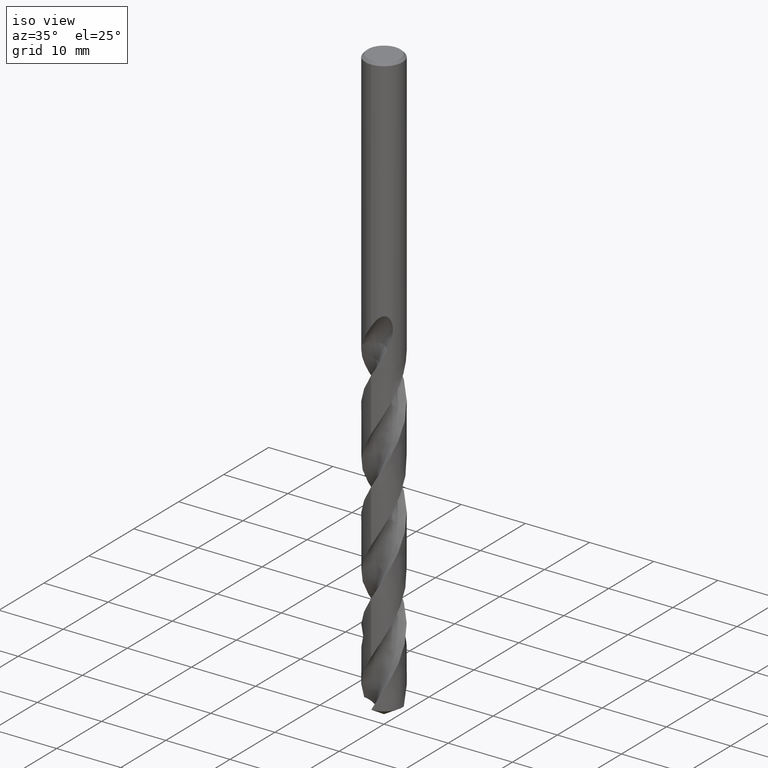
[diagram: clean part render]
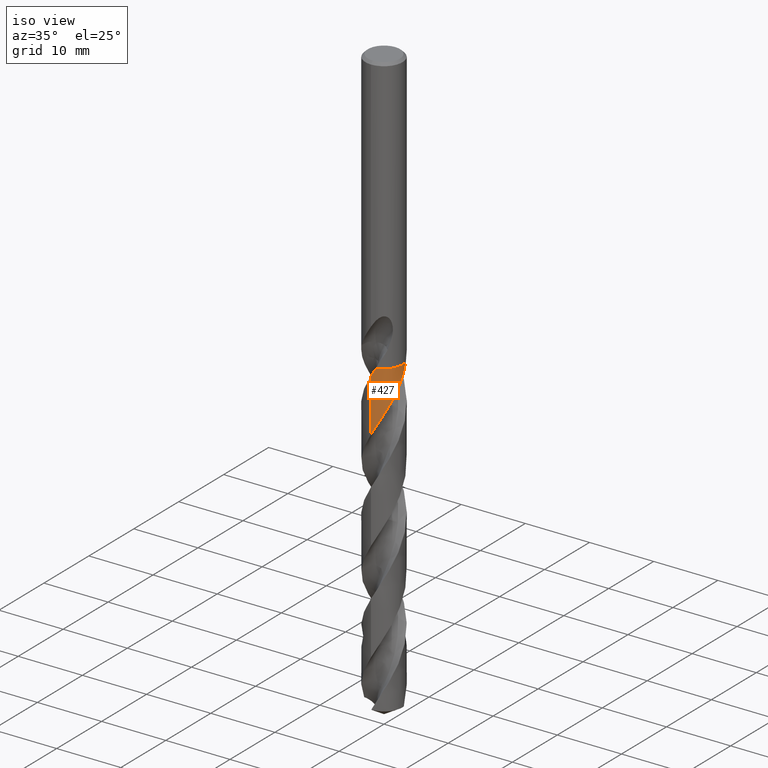
[diagram: same view with one face highlighted and labeled with its STEP entity id]
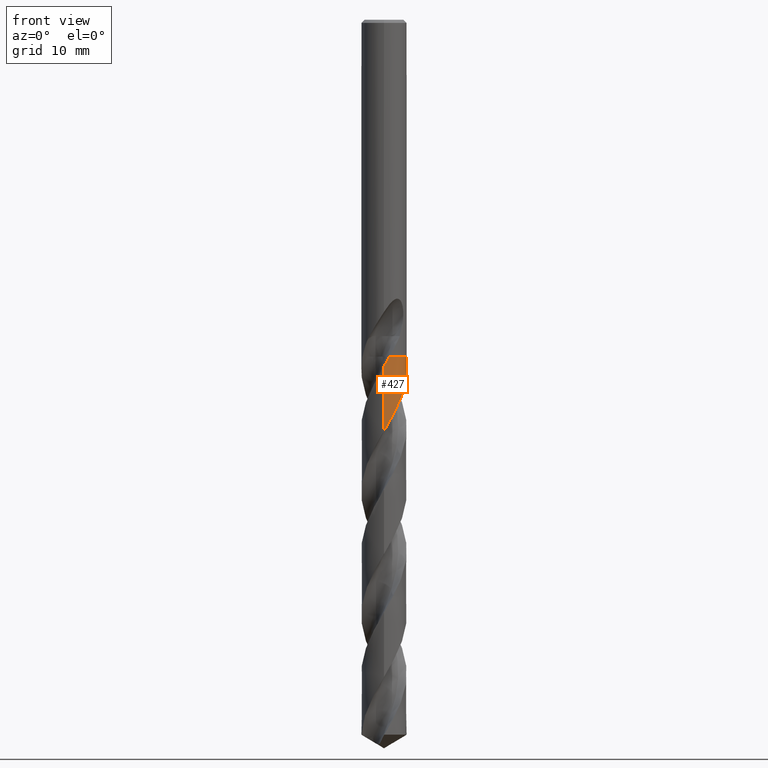
[diagram: same view with one face highlighted and labeled with its STEP entity id]
A machine part, iso view. The second image highlights one B-rep face of the part: STEP entity #427.
A second angle (front view) of the same face is appended — the face is thin or edge-on in the first view.
In plain terms, the highlighted conical surface has half-angle 0 deg.
Its self-contained STEP definition (entity closure, byte-faithful):
#319=VERTEX_POINT('',#845);
#347=EDGE_CURVE('',#361,#539,#874,.T.);
#361=VERTEX_POINT('',#890);
#369=EDGE_CURVE('',#319,#539,#900,.T.);
#427=ADVANCED_FACE('',(#965),#966,.T.);
#525=VERTEX_POINT('',#1069);
#539=VERTEX_POINT('',#1085);
#573=VERTEX_POINT('',#1122);
#593=EDGE_CURVE('',#573,#319,#1143,.T.);
#661=EDGE_CURVE('',#787,#573,#1219,.T.);
#719=EDGE_CURVE('',#361,#525,#1282,.T.);
#749=EDGE_CURVE('',#525,#787,#1313,.T.);
#787=VERTEX_POINT('',#1356);
#845=CARTESIAN_POINT('',(0.708817146820512,-2.81193853461724,-43.005));
#874=LINE('',#2320,#2321);
#890=CARTESIAN_POINT('',(6.17278690154245E-015,-2.89991970615239,-52.509697315015));
#900=B_SPLINE_CURVE_WITH_KNOTS('',3,(#3314,#3315,#3316,#3317,#3318,#3319,#3320,#3321,#3322,#3323,#3324,#3325,#3326,#3327,#3328,#3329,#3330,#3331,#3332,#3333,#3334,#3335,#3336,#3337,#3338,#3339,#3340,#3341,#3342,#3343,#3344,#3345,#3346,#3347,#3348,#3349,#3350,#3351,#3352,#3353,#3354,#3355,#3356,#3357,#3358,#3359,#3360,#3361,#3362,#3363,#3364,#3365,#3366,#3367,#3368,#3369,#3370,#3371,#3372,#3373,#3374,#3375,#3376,#3377,#3378,#3379,#3380,#3381,#3382,#3383,#3384,#3385,#3386,#3387,#3388,#3389,#3390,#3391,#3392,#3393,#3394,#3395,#3396,#3397,#3398,#3399,#3400,#3401,#3402,#3403,#3404,#3405,#3406,#3407,#3408,#3409,#3410,#3411,#3412,#3413,#3414,#3415,#3416,#3417,#3418,#3419,#3420,#3421,#3422,#3423,#3424,#3425,#3426,#3427,#3428,#3429,#3430,#3431,#3432,#3433,#3434,#3435,#3436,#3437,#3438,#3439,#3440,#3441,#3442,#3443,#3444,#3445),.UNSPECIFIED.,.F.,.F.,(4,2,2,2,2,2,2,2,2,2,2,2,2,2,2,2,2,2,2,2,2,2,2,2,2,2,2,2,2,2,2,2,2,2,2,2,2,2,2,2,2,2,2,2,2,2,2,2,2,2,2,2,2,2,2,2,2,2,2,2,2,2,2,2,2,4),(0.0,0.734687601992351,0.831900823616429,1.31989510520813,2.08909400224693,3.03914760897372,4.46201805980387,4.72253412784122,5.64926966020143,6.21012565874434,6.8001131264814,8.12153289467717,8.69105803085714,9.9700948490683,10.5528626127341,11.7634123763994,12.5715874202384,14.032657692584,14.1608117507879,15.102555920496,15.6631895520941,16.2462143594435,17.4330052633375,18.2952926140229,19.4688288888984,20.0514404123535,21.2400638655297,22.0940010850815,23.2656772812075,23.9655904610057,25.3884582794613,25.6570285675933,26.6004915529166,27.1605235385773,27.7187555234633,29.0237748224459,29.6099386749464,30.9057323737993,31.4869657691016,32.730748809919,33.4680922925951,34.8761184069554,35.1500579167859,36.0882912480827,36.6481110979691,37.213759276032,38.5104369832416,39.0913081906929,40.3394665584893,41.0694864308578,42.495176045494,42.7620772538122,43.7125495049517,44.2719425935741,44.8218555236205,46.1340946125214,46.7098608088504,48.0081814299684,48.5887450305573,49.852509500661,50.5585447799354,51.8394514170027,52.3256821394527,53.1847950576051,54.481717700277,55.7775264751287),.UNSPECIFIED.);
#965=FACE_OUTER_BOUND('',#4234,.T.);
#966=CONICAL_SURFACE('',#4235,2.89995,2.07221657331544E-006);
#1069=CARTESIAN_POINT('',(2.74207985757633,0.943619701096182,-43.005));
#1085=CARTESIAN_POINT('',(1.37223024195501E-014,-2.89990256687544,-44.2387100143636));
#1122=CARTESIAN_POINT('',(0.711636373017269,-2.81122636630329,-43.0));
#1143=B_SPLINE_CURVE_WITH_KNOTS('',3,(#6725,#6726,#6727,#6728),.UNSPECIFIED.,.F.,.F.,(4,4),(0.0,0.00780790975939207),.UNSPECIFIED.);
#1219=CIRCLE('',#9237,2.8999);
#1282=B_SPLINE_CURVE_WITH_KNOTS('',3,(#10588,#10589,#10590,#10591,#10592,#10593,#10594,#10595,#10596,#10597,#10598,#10599,#10600,#10601,#10602,#10603,#10604,#10605,#10606,#10607,#10608,#10609,#10610,#10611,#10612,#10613,#10614,#10615,#10616,#10617,#10618,#10619,#10620,#10621,#10622,#10623,#10624,#10625,#10626,#10627,#10628,#10629,#10630,#10631,#10632,#10633,#10634,#10635,#10636,#10637,#10638,#10639,#10640,#10641,#10642,#10643,#10644,#10645,#10646,#10647,#10648,#10649,#10650,#10651,#10652,#10653,#10654,#10655,#10656,#10657,#10658,#10659,#10660,#10661,#10662,#10663,#10664,#10665,#10666,#10667,#10668,#10669,#10670,#10671,#10672,#10673,#10674,#10675,#10676,#10677,#10678,#10679,#10680,#10681,#10682,#10683,#10684,#10685,#10686,#10687,#10688,#10689,#10690,#10691,#10692,#10693,#10694,#10695,#10696,#10697,#10698,#10699,#10700,#10701,#10702,#10703,#10704,#10705,#10706,#10707,#10708,#10709,#10710,#10711,#10712,#10713,#10714,#10715),.UNSPECIFIED.,.F.,.F.,(4,2,2,2,2,2,2,2,2,2,2,2,2,2,2,2,2,2,2,2,2,2,2,2,2,2,2,2,2,2,2,2,2,2,2,2,2,2,2,2,2,2,2,2,2,2,2,2,2,2,2,2,2,2,2,2,2,2,2,2,2,2,2,4),(0.0,3.20798292329517,4.08689199098889,5.02861937134433,5.97390468474338,6.91610593440943,7.8627072889589,8.80529337933982,9.75309115190887,10.6961901887487,11.6451567993103,12.588646889427,13.5390077681298,14.4831208437243,15.4348784244,16.379756273268,16.8571535029794,17.3084569122919,18.2418636930199,18.7194313187106,19.1880070358211,20.0788831232633,20.5569666868747,21.4938854929208,22.4452532040103,23.383028196343,24.3335994011987,25.2725994555851,26.2225610786494,27.1628903736692,28.112516014271,29.0537607565007,30.0029556899291,30.9453598790916,31.8942270023913,32.8691578225874,33.9815864049715,34.4597881439539,35.3316001609174,36.1568058120427,36.2322825903713,37.3907671492209,38.3796142544271,39.3248848461089,40.3016385692045,41.2750833376512,42.2288626331392,43.1731593162767,44.1232122765622,45.0681036246441,46.0193752605064,46.9648142503493,47.9173580993406,48.8632474463446,49.3122940622853,49.7269289274534,51.2902692851401,51.5857097265407,52.7029618457396,53.1239293373994,53.8560732964571,54.9621123230717,55.5142682027793,56.0754838556959),.UNSPECIFIED.);
#1313=B_SPLINE_CURVE_WITH_KNOTS('',3,(#10801,#10802,#10803,#10804),.UNSPECIFIED.,.F.,.F.,(4,4),(0.0,0.00883182869743307),.UNSPECIFIED.);
#1356=CARTESIAN_POINT('',(2.74112394825592,0.946392894255812,-43.0));
#2320=CARTESIAN_POINT('',(3.55168846937037E-016,-2.89995,-67.12875210241));
#2321=VECTOR('',#12318,1.0);
#3314=CARTESIAN_POINT('',(0.709196864390202,-2.81184278890881,-43.0043266329164));
#3315=CARTESIAN_POINT('',(0.589819924759416,-2.84195223305977,-43.2160258381416));
#3316=CARTESIAN_POINT('',(0.468776034634397,-2.8643967198523,-43.4272015964065));
#3317=CARTESIAN_POINT('',(0.330658596945046,-2.88103405007569,-43.6670962741344));
#3318=CARTESIAN_POINT('',(0.314507135909671,-2.88284192165602,-43.6951349575803));
#3319=CARTESIAN_POINT('',(0.217230326482938,-2.89290369909604,-43.8638616264259));
#3320=CARTESIAN_POINT('',(0.135774800674416,-2.89787060357993,-44.004585474267));
#3321=CARTESIAN_POINT('',(-0.074381514166789,-2.90179993398426,-44.3670175475019));
#3322=CARTESIAN_POINT('',(-0.203029145353825,-2.89565063021488,-44.5880982597957));
#3323=CARTESIAN_POINT('',(-0.488901711454981,-2.86281411659515,-45.0834585131535));
#3324=CARTESIAN_POINT('',(-0.645019690346248,-2.83171762376365,-45.3567065406475));
#3325=CARTESIAN_POINT('',(-1.02641912146738,-2.7225915342234,-46.0406911637749));
#3326=CARTESIAN_POINT('',(-1.24633355511751,-2.62922566431542,-46.4492730089021));
#3327=CARTESIAN_POINT('',(-1.49019489722658,-2.4881092516152,-46.9343137069972));
#3328=CARTESIAN_POINT('',(-1.52742685316338,-2.46542801260504,-47.0093448240901));
#3329=CARTESIAN_POINT('',(-1.69469731268276,-2.35828650455709,-47.351515218612));
#3330=CARTESIAN_POINT('',(-1.81833690228464,-2.26432394942695,-47.6184666809685));
#3331=CARTESIAN_POINT('',(-2.00378490003421,-2.09836374197422,-48.0472472979415));
#3332=CARTESIAN_POINT('',(-2.07064078423254,-2.03242246317552,-48.2087785507716));
#3333=CARTESIAN_POINT('',(-2.20104968878787,-1.89066594952387,-48.5404423289429));
#3334=CARTESIAN_POINT('',(-2.26412480707362,-1.81465315627334,-48.7102880190157));
#3335=CARTESIAN_POINT('',(-2.45547280324397,-1.55852546491168,-49.2612979775579));
#3336=CARTESIAN_POINT('',(-2.56713592661828,-1.36683607651739,-49.6411883184141));
#3337=CARTESIAN_POINT('',(-2.69421694791627,-1.07693551033774,-50.186184672626));
#3338=CARTESIAN_POINT('',(-2.72814880148011,-0.987820594419387,-50.3501570491569));
#3339=CARTESIAN_POINT('',(-2.82382700616999,-0.693755596008218,-50.8830968931142));
#3340=CARTESIAN_POINT('',(-2.86733093255858,-0.483506136455628,-51.2509569154893));
#3341=CARTESIAN_POINT('',(-2.89638542323459,-0.173189537382043,-51.7876180872426));
#3342=CARTESIAN_POINT('',(-2.90056982142947,-0.0756927287708941,-51.9553914710871));
#3343=CARTESIAN_POINT('',(-2.89831444463653,0.224342338911806,-52.4724511229055));
#3344=CARTESIAN_POINT('',(-2.87557607976341,0.426229716092262,-52.8208215776271));
#3345=CARTESIAN_POINT('',(-2.80283920299499,0.756269223561304,-53.4027965164672));
#3346=CARTESIAN_POINT('',(-2.76451945364778,0.886150664081288,-53.6353337631728));
#3347=CARTESIAN_POINT('',(-2.63191623943872,1.24190505227851,-54.2897078462182));
#3348=CARTESIAN_POINT('',(-2.51788090277063,1.45934411023886,-54.7093797065605));
#3349=CARTESIAN_POINT('',(-2.36556493916384,1.67753664902391,-55.1675407943511));
#3350=CARTESIAN_POINT('',(-2.35308924782351,1.69499203512883,-55.2044792950339));
#3351=CARTESIAN_POINT('',(-2.2473267059892,1.83955175591963,-55.5129735472538));
#3352=CARTESIAN_POINT('',(-2.14402480695563,1.95897316291354,-55.7844139536754));
#3353=CARTESIAN_POINT('',(-1.96458581109958,2.13513145862369,-56.2176903296006));
#3354=CARTESIAN_POINT('',(-1.8944575395359,2.19759537385795,-56.379247417778));
#3355=CARTESIAN_POINT('',(-1.74543147559522,2.31788391160528,-56.7090121685746));
#3356=CARTESIAN_POINT('',(-1.66643662148603,2.37531004701323,-56.8769084545678));
#3357=CARTESIAN_POINT('',(-1.41836335931646,2.53718220237806,-57.3873540556447));
#3358=CARTESIAN_POINT('',(-1.24124500589971,2.62838483814613,-57.7290506124596));
#3359=CARTESIAN_POINT('',(-0.921667464707236,2.75335884415866,-58.3199752886997));
#3360=CARTESIAN_POINT('',(-0.783489792841563,2.79581422053313,-58.5681092525272));
#3361=CARTESIAN_POINT('',(-0.451247591307603,2.87133494212418,-59.15536522581));
#3362=CARTESIAN_POINT('',(-0.25572263849469,2.89531670443546,-59.49313027734));
#3363=CARTESIAN_POINT('',(0.0383553324620512,2.90132305926764,-59.999592220549));
#3364=CARTESIAN_POINT('',(0.135923123659335,2.89838978849652,-60.1674015531133));
#3365=CARTESIAN_POINT('',(0.431471096796989,2.87455339500278,-60.6783495184131));
#3366=CARTESIAN_POINT('',(0.627696703381162,2.8381807534145,-61.0206286274081));
#3367=CARTESIAN_POINT('',(0.955900590242541,2.74159726131393,-61.6097790106421));
#3368=CARTESIAN_POINT('',(1.08988973709356,2.69113716741953,-61.8555593761785));
#3369=CARTESIAN_POINT('',(1.3975173783784,2.54854175554857,-62.439979285129));
#3370=CARTESIAN_POINT('',(1.56670454619967,2.44818709349459,-62.7772854763642));
#3371=CARTESIAN_POINT('',(1.81877272314258,2.26174211436463,-63.3171440009698));
#3372=CARTESIAN_POINT('',(1.90868737611621,2.1863916184141,-63.5187430922175));
#3373=CARTESIAN_POINT('',(2.16674676330566,1.94206641984917,-64.1312355235213));
#3374=CARTESIAN_POINT('',(2.31895818381013,1.75753831806082,-64.5403091818079));
#3375=CARTESIAN_POINT('',(2.47105099488338,1.51842563975636,-65.0282241614656));
#3376=CARTESIAN_POINT('',(2.49430725855991,1.47991221332055,-65.1056660736381));
#3377=CARTESIAN_POINT('',(2.59516583319139,1.30375273598382,-65.4553745757094));
#3378=CARTESIAN_POINT('',(2.66234128747465,1.16043147898697,-65.7274352820531));
#3379=CARTESIAN_POINT('',(2.75024896171845,0.924460356146151,-66.1612671925264));
#3380=CARTESIAN_POINT('',(2.77871702440493,0.835007760530864,-66.3227306289101));
#3381=CARTESIAN_POINT('',(2.82681089447048,0.65390656119108,-66.6453527343366));
#3382=CARTESIAN_POINT('',(2.84642210462004,0.562427974583277,-66.8062492486754));
#3383=CARTESIAN_POINT('',(2.89701049504161,0.254552472355838,-67.34396392882));
#3384=CARTESIAN_POINT('',(2.90796844421366,0.0355133927666785,-67.7195975123642));
#3385=CARTESIAN_POINT('',(2.88799921808818,-0.280771397296302,-68.2652659560469));
#3386=CARTESIAN_POINT('',(2.87683578137268,-0.378388692770556,-68.434204591919));
#3387=CARTESIAN_POINT('',(2.82518825772053,-0.689300942719356,-68.977367921698));
#3388=CARTESIAN_POINT('',(2.76569458023569,-0.898794154200102,-69.3504068895454));
#3389=CARTESIAN_POINT('',(2.64640040354734,-1.18987263572748,-69.8920439325809));
#3390=CARTESIAN_POINT('',(2.60495579698237,-1.27805637760547,-70.0595688133809));
#3391=CARTESIAN_POINT('',(2.46118353987375,-1.54781353398641,-70.5863465494807));
#3392=CARTESIAN_POINT('',(2.34363691674901,-1.72063327984319,-70.9445826310018));
#3393=CARTESIAN_POINT('',(2.12844703537059,-1.97351170771502,-71.5163303205503));
#3394=CARTESIAN_POINT('',(2.04245302642401,-2.06237808128504,-71.7287776110998));
#3395=CARTESIAN_POINT('',(1.77660671426545,-2.30413975147303,-72.3481052932362));
#3396=CARTESIAN_POINT('',(1.58334794538412,-2.4410025558116,-72.7531700302044));
#3397=CARTESIAN_POINT('',(1.33514313974828,-2.57473976020594,-73.2386035973654));
#3398=CARTESIAN_POINT('',(1.29421718751436,-2.59555261483421,-73.3176316225911));
#3399=CARTESIAN_POINT('',(1.11102931449108,-2.68330389430504,-73.6675581270541));
#3400=CARTESIAN_POINT('',(0.963944105202415,-2.73958423965281,-73.9382565192406));
#3401=CARTESIAN_POINT('',(0.722982270927824,-2.80996332020994,-74.3707419340157));
#3402=CARTESIAN_POINT('',(0.631691606703626,-2.83188507521568,-74.5322286319872));
#3403=CARTESIAN_POINT('',(0.446302246679511,-2.86698621178643,-74.857096144676));
#3404=CARTESIAN_POINT('',(0.352353484226026,-2.88004046485142,-75.0202058990032));
#3405=CARTESIAN_POINT('',(0.0415745769452985,-2.90779623897309,-75.5579269589028));
#3406=CARTESIAN_POINT('',(-0.17638593387573,-2.90275193042695,-75.9313690396473));
#3407=CARTESIAN_POINT('',(-0.488295631868381,-2.86022283001012,-76.4733812363293));
#3408=CARTESIAN_POINT('',(-0.584034200610236,-2.84221777349979,-76.6408727951698));
#3409=CARTESIAN_POINT('',(-0.881999503603227,-2.77049610450104,-77.169030861864));
#3410=CARTESIAN_POINT('',(-1.07952135003523,-2.69967927711464,-77.5286673094258));
#3411=CARTESIAN_POINT('',(-1.37783742558705,-2.55467980726858,-78.0998025877722));
#3412=CARTESIAN_POINT('',(-1.48438795183302,-2.49427350514912,-78.3102380740958));
#3413=CARTESIAN_POINT('',(-1.78673812498564,-2.29662569906975,-78.9328078256753));
#3414=CARTESIAN_POINT('',(-1.9698674405227,-2.14164424703875,-79.343058648088));
#3415=CARTESIAN_POINT('',(-2.16228349413605,-1.93297596733971,-79.8317579330699));
#3416=CARTESIAN_POINT('',(-2.19185112192724,-1.89938254433786,-79.9087912170495));
#3417=CARTESIAN_POINT('',(-2.32310044288196,-1.7431173968345,-80.260365742046));
#3418=CARTESIAN_POINT('',(-2.41535266404678,-1.61286468289323,-80.5346904609563));
#3419=CARTESIAN_POINT('',(-2.54415793355382,-1.3949664377409,-80.9707593143221));
#3420=CARTESIAN_POINT('',(-2.58794559649669,-1.31195208915044,-81.1321851747051));
#3421=CARTESIAN_POINT('',(-2.66666231668683,-1.14337255934305,-81.45251707738));
#3422=CARTESIAN_POINT('',(-2.70166039941915,-1.05802186712333,-81.6111702879698));
#3423=CARTESIAN_POINT('',(-2.80618364107794,-0.763935484255457,-82.1490630429778));
#3424=CARTESIAN_POINT('',(-2.85605439550709,-0.548902425567817,-82.52709708689));
#3425=CARTESIAN_POINT('',(-2.89211663726846,-0.23428509810437,-83.072348159548));
#3426=CARTESIAN_POINT('',(-2.89831086315649,-0.137885752075977,-83.2384513480526));
#3427=CARTESIAN_POINT('',(-2.90279481863129,0.176226004983761,-83.77984122963));
#3428=CARTESIAN_POINT('',(-2.88139551911636,0.39358277263867,-84.1539408687989));
#3429=CARTESIAN_POINT('',(-2.81547414390866,0.701791289294951,-84.6966110868712));
#3430=CARTESIAN_POINT('',(-2.79032820090689,0.795905060807742,-84.8641000364877));
#3431=CARTESIAN_POINT('',(-2.69559130004443,1.09023158141851,-85.3969411240678));
#3432=CARTESIAN_POINT('',(-2.60874412983381,1.28426496764883,-85.7612143243447));
#3433=CARTESIAN_POINT('',(-2.44156318722105,1.56931171979168,-86.3302106866316));
#3434=CARTESIAN_POINT('',(-2.37546036929183,1.66767561401405,-86.5338556696316));
#3435=CARTESIAN_POINT('',(-2.17310184892078,1.93227674829981,-87.1079704115577));
#3436=CARTESIAN_POINT('',(-2.02404739530892,2.08791203244397,-87.4770840384082));
#3437=CARTESIAN_POINT('',(-1.79648885003799,2.27799127871136,-87.9875650996091));
#3438=CARTESIAN_POINT('',(-1.73171942197208,2.32760791365919,-88.1278859755498));
#3439=CARTESIAN_POINT('',(-1.54700194219282,2.45713398905651,-88.5166359860108));
#3440=CARTESIAN_POINT('',(-1.42303825434204,2.53094641164164,-88.764757637246));
#3441=CARTESIAN_POINT('',(-1.09946449878408,2.69229642379989,-89.387788805201));
#3442=CARTESIAN_POINT('',(-0.894514007505912,2.76715319852434,-89.7610084112836));
#3443=CARTESIAN_POINT('',(-0.47191971256064,2.86958388846035,-90.5101989459375));
#3444=CARTESIAN_POINT('',(-0.255565140427376,2.89688924810318,-90.8831695377742));
#3445=CARTESIAN_POINT('',(-0.0381319874682582,2.89974929115117,-91.2575042048201));
#4234=EDGE_LOOP('',(#12458,#12459,#12460,#12461,#12462,#12463));
#4235=AXIS2_PLACEMENT_3D('',#12464,#12465,#12466);
#6725=CARTESIAN_POINT('',(0.71163637301725,-2.8112263663033,-43.0));
#6726=CARTESIAN_POINT('',(0.710367975755525,-2.81154745433715,-43.002249841786));
#6727=CARTESIAN_POINT('',(0.709099356840707,-2.81186768503794,-43.0044996801406));
#6728=CARTESIAN_POINT('',(0.707830517146383,-2.81218705816575,-43.0067495165575));
#9237=AXIS2_PLACEMENT_3D('',#12685,#12686,#12687);
#10588=CARTESIAN_POINT('',(-2.88602569784433,-0.284351316828662,-91.2575042048201));
#10589=CARTESIAN_POINT('',(-2.83363953802558,-0.816025439440411,-90.3311997615502));
#10590=CARTESIAN_POINT('',(-2.63481816987268,-1.32534620793921,-89.4290724024854));
#10591=CARTESIAN_POINT('',(-2.2208447661475,-1.87069314039981,-88.2505891012098));
#10592=CARTESIAN_POINT('',(-2.12313727032623,-1.98087451050404,-87.9961975107438));
#10593=CARTESIAN_POINT('',(-1.90437005697111,-2.19274810545372,-87.4712594909806));
#10594=CARTESIAN_POINT('',(-1.78240535838824,-2.29300298257379,-87.2011049017321));
#10595=CARTESIAN_POINT('',(-1.52269593596356,-2.47313777342799,-86.6573594375165));
#10596=CARTESIAN_POINT('',(-1.385591028283,-2.55245865450293,-86.3840152750498));
#10597=CARTESIAN_POINT('',(-1.10053373400127,-2.68766887872904,-85.8401624547733));
#10598=CARTESIAN_POINT('',(-0.95288763693384,-2.74350315896779,-85.5700327903458));
#10599=CARTESIAN_POINT('',(-0.649037797919607,-2.83086218094608,-85.0261458355491));
#10600=CARTESIAN_POINT('',(-0.493615006805579,-2.86203815961651,-84.7526361679551));
#10601=CARTESIAN_POINT('',(-0.180213046583823,-2.89865888199646,-84.2086799251554));
#10602=CARTESIAN_POINT('',(-0.0225088728840171,-2.90418078755561,-83.9386355908567));
#10603=CARTESIAN_POINT('',(0.293365356542886,-2.88945991529697,-83.3947066840088));
#10604=CARTESIAN_POINT('',(0.450669587684879,-2.86911386841294,-83.1210841051749));
#10605=CARTESIAN_POINT('',(0.759258409144756,-2.8032463651742,-82.5770608827561));
#10606=CARTESIAN_POINT('',(0.910353625458037,-2.75789722911977,-82.3070810753801));
#10607=CARTESIAN_POINT('',(1.20484062229416,-2.6426130140344,-81.7631121188331));
#10608=CARTESIAN_POINT('',(1.34736337274273,-2.5728427281543,-81.4893930984913));
#10609=CARTESIAN_POINT('',(1.61844698557568,-2.41148140565992,-80.9453866148574));
#10610=CARTESIAN_POINT('',(1.74693983242342,-2.32010783679155,-80.6755278410847));
#10611=CARTESIAN_POINT('',(1.98890677258356,-2.1164369509206,-80.1315454726492));
#10612=CARTESIAN_POINT('',(2.10158443173985,-2.00455791220092,-79.8577131106543));
#10613=CARTESIAN_POINT('',(2.30656738056579,-1.76474408638561,-79.3136448539286));
#10614=CARTESIAN_POINT('',(2.3989240853558,-1.63701866032681,-79.0438630403224));
#10615=CARTESIAN_POINT('',(2.56278822998229,-1.36644804938414,-78.4998428153679));
#10616=CARTESIAN_POINT('',(2.63365195629538,-1.22424856992745,-78.2259176609711));
#10617=CARTESIAN_POINT('',(2.75084568597526,-0.931336472335815,-77.6817920818365));
#10618=CARTESIAN_POINT('',(2.79732556685445,-0.780772426597952,-77.4120719129659));
#10619=CARTESIAN_POINT('',(2.84857957923508,-0.549321844413072,-77.0043847306481));
#10620=CARTESIAN_POINT('',(2.86255669566522,-0.471057690331347,-76.8676632864153));
#10621=CARTESIAN_POINT('',(2.88344884551194,-0.318081677033858,-76.6012262941378));
#10622=CARTESIAN_POINT('',(2.89070685735732,-0.24345424565037,-76.4714795489612));
#10623=CARTESIAN_POINT('',(2.90408910227867,-0.0135446407132513,-76.0741193032293));
#10624=CARTESIAN_POINT('',(2.90066259237214,0.142080691218813,-75.807579921987));
#10625=CARTESIAN_POINT('',(2.87658015475091,0.376078747040127,-75.4030854440691));
#10626=CARTESIAN_POINT('',(2.86517999056256,0.454820889012618,-75.2663058885154));
#10627=CARTESIAN_POINT('',(2.8362582159992,0.60952365570802,-74.9948613702055));
#10628=CARTESIAN_POINT('',(2.81887540276371,0.685425482323846,-74.8601269460121));
#10629=CARTESIAN_POINT('',(2.75962316790562,0.903436119720986,-74.4702173055553));
#10630=CARTESIAN_POINT('',(2.70986153719215,1.04330516733568,-74.2158476244114));
#10631=CARTESIAN_POINT('',(2.61711816357177,1.25173089439327,-73.8236411737783));
#10632=CARTESIAN_POINT('',(2.58177291758227,1.32308786714719,-73.686807183125));
#10633=CARTESIAN_POINT('',(2.46872482185346,1.52953254550831,-73.2811604910158));
#10634=CARTESIAN_POINT('',(2.38293027218799,1.66005838793019,-73.011561993605));
#10635=CARTESIAN_POINT('',(2.18946908407626,1.90817362979447,-72.4701270255326));
#10636=CARTESIAN_POINT('',(2.08195973367798,2.02491693650964,-72.1986419856922));
#10637=CARTESIAN_POINT('',(1.8507671426679,2.23803217812495,-71.6568229413114));
#10638=CARTESIAN_POINT('',(1.72762420967871,2.33441669468488,-71.3868438343187));
#10639=CARTESIAN_POINT('',(1.46494964191242,2.50774278701328,-70.845179973555));
#10640=CARTESIAN_POINT('',(1.32584190532735,2.5839796851716,-70.573821774087));
#10641=CARTESIAN_POINT('',(1.03847285977447,2.71215211116268,-70.0317190274617));
#10642=CARTESIAN_POINT('',(0.890763661315534,2.76419566161146,-69.7613110059595));
#10643=CARTESIAN_POINT('',(0.586319708978538,2.84447455486035,-69.2193395780516));
#10644=CARTESIAN_POINT('',(0.430201133403449,2.87222937314271,-68.9480916768277));
#10645=CARTESIAN_POINT('',(0.116702672966151,2.90183446766146,-68.4056978171794));
#10646=CARTESIAN_POINT('',(-0.0401314372091472,2.90390747989081,-68.1348755292065));
#10647=CARTESIAN_POINT('',(-0.354434653104902,2.882559088282,-67.5925548675064));
#10648=CARTESIAN_POINT('',(-0.511176582936655,2.85892377969859,-67.3213970295557));
#10649=CARTESIAN_POINT('',(-0.817825035910823,2.78665793309427,-66.7788024017218));
#10650=CARTESIAN_POINT('',(-0.967214380483609,2.73839515547504,-66.5076948857692));
#10651=CARTESIAN_POINT('',(-1.25819661622071,2.61756832129893,-65.9652114916401));
#10652=CARTESIAN_POINT('',(-1.39906947942815,2.54505676208949,-65.6941705274608));
#10653=CARTESIAN_POINT('',(-1.666606361503,2.37839638735727,-65.1513860295972));
#10654=CARTESIAN_POINT('',(-1.79283393648497,2.28475182466848,-64.8799613386922));
#10655=CARTESIAN_POINT('',(-2.02988608569056,2.07707481647635,-64.3372666187006));
#10656=CARTESIAN_POINT('',(-2.1400922204015,1.96333391962424,-64.066335028788));
#10657=CARTESIAN_POINT('',(-2.34362803634726,1.71565385438141,-63.5143821143309));
#10658=CARTESIAN_POINT('',(-2.4359754735413,1.58179627732323,-63.2336300099119));
#10659=CARTESIAN_POINT('',(-2.60878994083504,1.27993488340073,-62.6347485217313));
#10660=CARTESIAN_POINT('',(-2.68520072183113,1.11068809566439,-62.3176716260188));
#10661=CARTESIAN_POINT('',(-2.7705956475288,0.860105122272239,-61.8611940679012));
#10662=CARTESIAN_POINT('',(-2.79312108529231,0.783858160084958,-61.7236408179691));
#10663=CARTESIAN_POINT('',(-2.84779448964576,0.566297408646426,-61.3364157607077));
#10664=CARTESIAN_POINT('',(-2.87257375040253,0.423161220140058,-61.087432580591));
#10665=CARTESIAN_POINT('',(-2.89973694523836,0.141663926986647,-60.601229041396));
#10666=CARTESIAN_POINT('',(-2.90316225823465,0.00432480311985281,-60.3655526274058));
#10667=CARTESIAN_POINT('',(-2.89633823739647,-0.14493863838749,-60.1071050584948));
#10668=CARTESIAN_POINT('',(-2.89568436118038,-0.157467260634602,-60.0854070340582));
#10669=CARTESIAN_POINT('',(-2.88361485112428,-0.362944563304645,-59.7296045642828));
#10670=CARTESIAN_POINT('',(-2.85301606129722,-0.554551683471999,-59.3980492046929));
#10671=CARTESIAN_POINT('',(-2.76103319002939,-0.902057721165941,-58.7798572151869));
#10672=CARTESIAN_POINT('',(-2.70509333388222,-1.05797849973871,-58.4943426023128));
#10673=CARTESIAN_POINT('',(-2.57061028271623,-1.35146454553875,-57.9376094837756));
#10674=CARTESIAN_POINT('',(-2.49323181027618,-1.48942257292899,-57.6668833974649));
#10675=CARTESIAN_POINT('',(-2.31361884812145,-1.75597205872031,-57.1140809577234));
#10676=CARTESIAN_POINT('',(-2.21116778807788,-1.88331078274616,-56.8322637955176));
#10677=CARTESIAN_POINT('',(-1.986717907786,-2.11869965223001,-56.2714184546012));
#10678=CARTESIAN_POINT('',(-1.86493209516298,-2.22666758276099,-55.9929587575982));
#10679=CARTESIAN_POINT('',(-1.60692970659285,-2.41924220666634,-55.4391327446586));
#10680=CARTESIAN_POINT('',(-1.47176759706327,-2.50374389605649,-55.1641157600041));
#10681=CARTESIAN_POINT('',(-1.19069559308875,-2.64888106275784,-54.6187145604139));
#10682=CARTESIAN_POINT('',(-1.04511369759582,-2.70963859382698,-54.3487324952289));
#10683=CARTESIAN_POINT('',(-0.744333976174837,-2.80725278537678,-53.8047915543663));
#10684=CARTESIAN_POINT('',(-0.589910009329175,-2.84369099507139,-53.5311023480597));
#10685=CARTESIAN_POINT('',(-0.277924206129434,-2.89085674188828,-52.9870524244045));
#10686=CARTESIAN_POINT('',(-0.120579309382803,-2.90169548036309,-52.7171234144947));
#10687=CARTESIAN_POINT('',(0.195668487180022,-2.89765766048653,-52.1731304405245));
#10688=CARTESIAN_POINT('',(0.353695143336416,-2.88261415213496,-51.8993489464848));
#10689=CARTESIAN_POINT('',(0.664283492776364,-2.82718577662638,-51.35528043261));
#10690=CARTESIAN_POINT('',(0.816725630791573,-2.78698734255085,-51.085439797583));
#10691=CARTESIAN_POINT('',(1.11497267141031,-2.68170525563963,-50.541436407217));
#10692=CARTESIAN_POINT('',(1.25987940188511,-2.61672646765427,-50.2675677574271));
#10693=CARTESIAN_POINT('',(1.53618998729548,-2.46461327073019,-49.7235467782087));
#10694=CARTESIAN_POINT('',(1.66760208185874,-2.37768778333702,-49.4538472115448));
#10695=CARTESIAN_POINT('',(1.85022328763659,-2.23422367669839,-49.0544561433544));
#10696=CARTESIAN_POINT('',(1.90713552439369,-2.18583814462921,-48.9259871318546));
#10697=CARTESIAN_POINT('',(2.01277035462503,-2.08877640475907,-48.6785087903347));
#10698=CARTESIAN_POINT('',(2.06173859614087,-2.04045454189965,-48.5594723191718));
#10699=CARTESIAN_POINT('',(2.28701958271026,-1.80175441545063,-47.9928890541143));
#10700=CARTESIAN_POINT('',(2.43887720830413,-1.59014825259194,-47.5509201834807));
#10701=CARTESIAN_POINT('',(2.58357472544369,-1.31795696699031,-47.018659289632));
#10702=CARTESIAN_POINT('',(2.6054398700836,-1.27418454810737,-46.9339649629328));
#10703=CARTESIAN_POINT('',(2.70470072560663,-1.06222394810959,-46.5296363887463));
#10704=CARTESIAN_POINT('',(2.76709671011406,-0.887203765393316,-46.2121180201489));
#10705=CARTESIAN_POINT('',(2.8294457036742,-0.639208677373589,-45.7725103014643));
#10706=CARTESIAN_POINT('',(2.84402883556587,-0.5708142820311,-45.6522851249357));
#10707=CARTESIAN_POINT('',(2.87714513578278,-0.382408082768682,-45.3225061516662));
#10708=CARTESIAN_POINT('',(2.89064411724323,-0.261544699921069,-45.1123999692893));
#10709=CARTESIAN_POINT('',(2.90539103562103,0.0433681168681574,-44.5864823795449));
#10710=CARTESIAN_POINT('',(2.89680582627908,0.226930118767774,-44.2729735338342));
#10711=CARTESIAN_POINT('',(2.85814677269968,0.498785479727102,-43.7988785578985));
#10712=CARTESIAN_POINT('',(2.84113281570697,0.587919916052602,-43.6409665401145));
#10713=CARTESIAN_POINT('',(2.79839971388206,0.766103090108799,-43.3238141369342));
#10714=CARTESIAN_POINT('',(2.77246360335235,0.855333836032139,-43.1641645422115));
#10715=CARTESIAN_POINT('',(2.74206094650516,0.943674644436791,-43.0049009412329));
#10801=CARTESIAN_POINT('',(2.74257913679137,0.942167596550884,-43.0076177738296));
#10802=CARTESIAN_POINT('',(2.74209520974777,0.943576255645985,-43.0050784247076));
#10803=CARTESIAN_POINT('',(2.74161014700947,0.944984688639918,-43.0025391667481));
#10804=CARTESIAN_POINT('',(2.74112394825594,0.9463928942558,-43.0));
#12318=DIRECTION('',(-2.53764958217631E-022,2.07221657331396E-006,0.999999999997853));
#12458=ORIENTED_EDGE('',*,*,#347,.F.);
#12459=ORIENTED_EDGE('',*,*,#719,.T.);
#12460=ORIENTED_EDGE('',*,*,#749,.T.);
#12461=ORIENTED_EDGE('',*,*,#661,.T.);
#12462=ORIENTED_EDGE('',*,*,#593,.T.);
#12463=ORIENTED_EDGE('',*,*,#369,.T.);
#12464=CARTESIAN_POINT('',(0.0,0.0,-67.12875210241));
#12465=DIRECTION('',(0.0,-0.0,-1.0));
#12466=DIRECTION('',(0.0,1.0,0.0));
#12685=CARTESIAN_POINT('',(0.0,0.0,-43.0));
#12686=DIRECTION('',(0.0,0.0,-1.0));
#12687=DIRECTION('',(0.0,1.0,0.0));